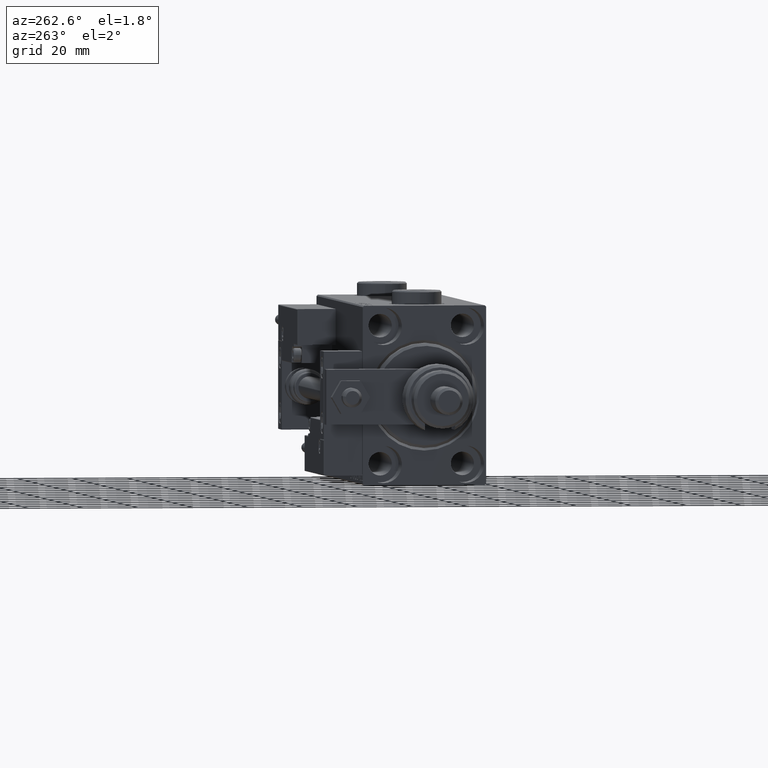
[diagram: clean part render]
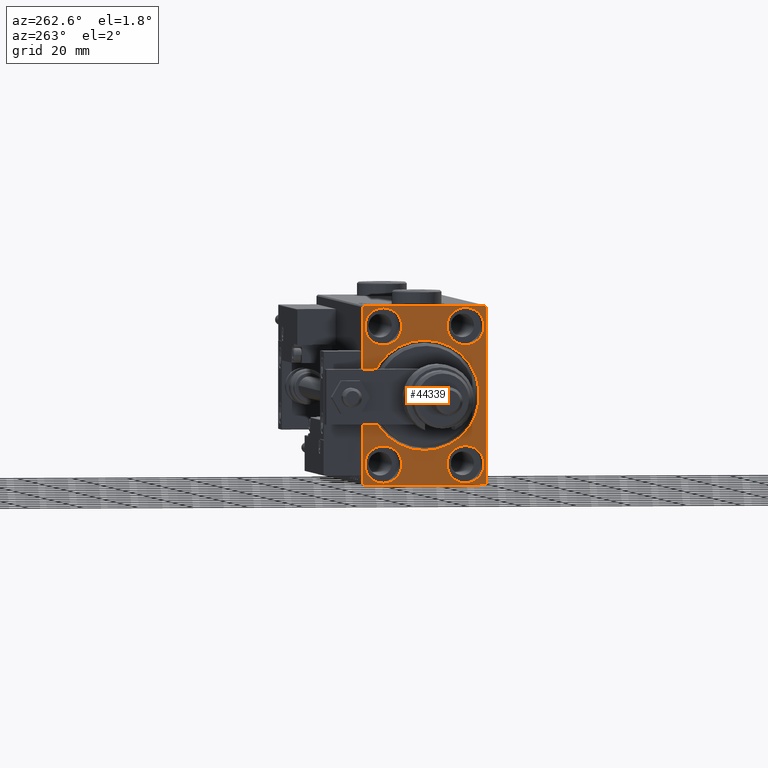
[diagram: same view with one face highlighted and labeled with its STEP entity id]
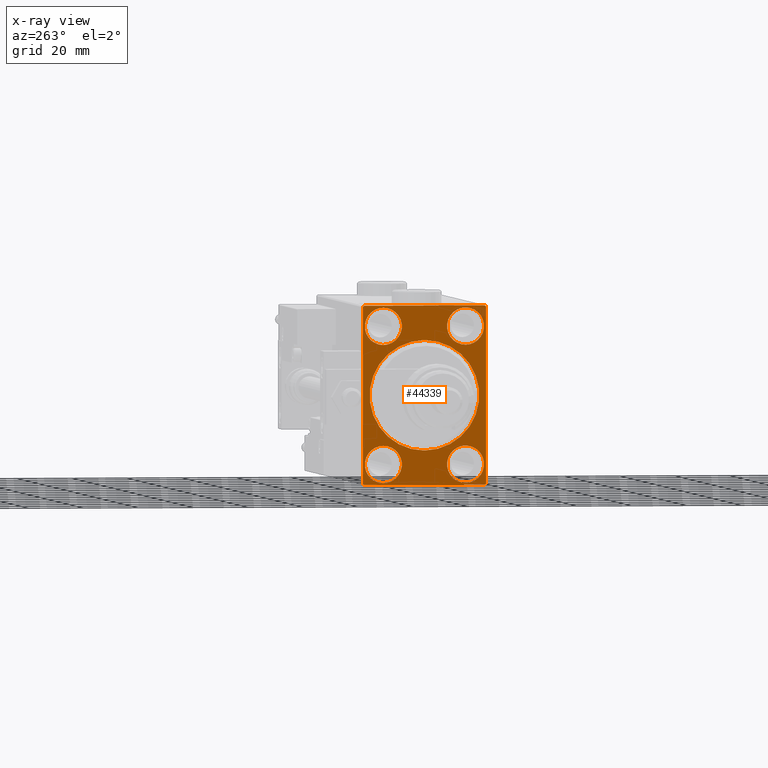
[diagram: x-ray of the same camera — body ghosted, the highlighted face saturated]
A machine part, auxiliary view. The second image highlights one B-rep face of the part: STEP entity #44339.
The next image is the same camera in x-ray: the body ghosted, the highlighted face saturated — about 0% of this face is hidden behind the body in this view.
In plain terms, the highlighted planar face has unit normal (1, 0, 0).
Its self-contained STEP definition (entity closure, byte-faithful):
#157 = ORIENTED_EDGE ( 'NONE', *, *, #30967, .F. ) ;
#197 = CARTESIAN_POINT ( 'NONE',  ( 0.000000000000000000, -22.50000000000000711, 31.99999999999999289 ) ) ;
#1012 = FACE_BOUND ( 'NONE', #31137, .T. ) ;
#1117 = ORIENTED_EDGE ( 'NONE', *, *, #22055, .F. ) ;
#1388 = VERTEX_POINT ( 'NONE', #45749 ) ;
#1399 = EDGE_CURVE ( 'NONE', #49392, #1388, #13057, .T. ) ;
#2092 = FACE_BOUND ( 'NONE', #42843, .T. ) ;
#2257 = ORIENTED_EDGE ( 'NONE', *, *, #32039, .T. ) ;
#2720 = CARTESIAN_POINT ( 'NONE',  ( 0.000000000000000000, -22.00000000000003197, -32.50000000000000711 ) ) ;
#2734 = CARTESIAN_POINT ( 'NONE',  ( 0.000000000000000000, 14.99999999999999645, -18.25000000000000355 ) ) ;
#2912 = ORIENTED_EDGE ( 'NONE', *, *, #26546, .F. ) ;
#3501 = VERTEX_POINT ( 'NONE', #9302 ) ;
#3998 = DIRECTION ( 'NONE',  ( 0.000000000000000000, 1.000000000000000000, 0.000000000000000000 ) ) ;
#4112 = CARTESIAN_POINT ( 'NONE',  ( 0.000000000000000000, 14.99999999999999645, -25.00000000000000000 ) ) ;
#5258 = LINE ( 'NONE', #26428, #28710 ) ;
#5323 = EDGE_LOOP ( 'NONE', ( #39892, #2257, #48218, #26035, #10172, #29565, #50951, #53430 ) ) ;
#5826 = CARTESIAN_POINT ( 'NONE',  ( 0.000000000000000000, -15.00000000000000355, -25.00000000000000000 ) ) ;
#6015 = CIRCLE ( 'NONE', #29738, 6.749999999999999112 ) ;
#6078 = LINE ( 'NONE', #18999, #50220 ) ;
#6351 = DIRECTION ( 'NONE',  ( 0.000000000000000000, -1.067522139062650425E-16, 1.000000000000000000 ) ) ;
#6387 = CIRCLE ( 'NONE', #49365, 6.749999999999999112 ) ;
#6614 = CARTESIAN_POINT ( 'NONE',  ( 0.000000000000000000, 22.50000000000000000, -32.00000000000002132 ) ) ;
#7098 = CIRCLE ( 'NONE', #14140, 6.749999999999999112 ) ;
#7206 = DIRECTION ( 'NONE',  ( -1.000000000000000000, 0.000000000000000000, 0.000000000000000000 ) ) ;
#7276 = EDGE_LOOP ( 'NONE', ( #37390, #157 ) ) ;
#7561 = AXIS2_PLACEMENT_3D ( 'NONE', #38524, #34433, #28466 ) ;
#8316 = LINE ( 'NONE', #12972, #24203 ) ;
#8325 = EDGE_CURVE ( 'NONE', #53133, #9653, #7098, .T. ) ;
#8513 = DIRECTION ( 'NONE',  ( -1.000000000000000000, 0.000000000000000000, 0.000000000000000000 ) ) ;
#8542 = DIRECTION ( 'NONE',  ( 0.000000000000000000, 0.000000000000000000, 1.000000000000000000 ) ) ;
#8670 = VECTOR ( 'NONE', #36022, 1000.000000000000000 ) ;
#9227 = VERTEX_POINT ( 'NONE', #9516 ) ;
#9302 = CARTESIAN_POINT ( 'NONE',  ( 0.000000000000000000, -22.50000000000000711, -32.00000000000002132 ) ) ;
#9516 = CARTESIAN_POINT ( 'NONE',  ( 0.000000000000000000, 14.99999999999999645, -31.75000000000000000 ) ) ;
#9653 = VERTEX_POINT ( 'NONE', #20193 ) ;
#10007 = CIRCLE ( 'NONE', #22288, 6.749999999999999112 ) ;
#10172 = ORIENTED_EDGE ( 'NONE', *, *, #38869, .F. ) ;
#10915 = DIRECTION ( 'NONE',  ( 0.000000000000000000, 0.000000000000000000, 1.000000000000000000 ) ) ;
#11276 = AXIS2_PLACEMENT_3D ( 'NONE', #22712, #26842, #18596 ) ;
#12019 = ORIENTED_EDGE ( 'NONE', *, *, #30341, .T. ) ;
#12363 = DIRECTION ( 'NONE',  ( 0.000000000000000000, 0.000000000000000000, 1.000000000000000000 ) ) ;
#12885 = EDGE_CURVE ( 'NONE', #24911, #19437, #16101, .T. ) ;
#12928 = CARTESIAN_POINT ( 'NONE',  ( 0.000000000000000000, -14.99999999999999645, 25.00000000000000000 ) ) ;
#12972 = CARTESIAN_POINT ( 'NONE',  ( 0.000000000000000000, -22.00000000000003197, -32.50000000000000711 ) ) ;
#13057 = LINE ( 'NONE', #25166, #47303 ) ;
#13394 = FACE_OUTER_BOUND ( 'NONE', #5323, .T. ) ;
#13544 = VERTEX_POINT ( 'NONE', #20755 ) ;
#13776 = VERTEX_POINT ( 'NONE', #18249 ) ;
#14140 = AXIS2_PLACEMENT_3D ( 'NONE', #12928, #17331, #8542 ) ;
#14469 = FACE_BOUND ( 'NONE', #7276, .T. ) ;
#14523 = DIRECTION ( 'NONE',  ( -0.000000000000000000, 0.7071067811865474617, 0.7071067811865474617 ) ) ;
#15279 = DIRECTION ( 'NONE',  ( 0.000000000000000000, 0.000000000000000000, -1.000000000000000000 ) ) ;
#15381 = VECTOR ( 'NONE', #15279, 1000.000000000000000 ) ;
#16088 = LINE ( 'NONE', #28723, #15381 ) ;
#16101 = CIRCLE ( 'NONE', #44171, 20.00000000000000355 ) ;
#16530 = ORIENTED_EDGE ( 'NONE', *, *, #17179, .F. ) ;
#16737 = DIRECTION ( 'NONE',  ( -1.000000000000000000, 0.000000000000000000, 0.000000000000000000 ) ) ;
#16910 = VERTEX_POINT ( 'NONE', #43301 ) ;
#17179 = EDGE_CURVE ( 'NONE', #35864, #9227, #10007, .T. ) ;
#17312 = EDGE_CURVE ( 'NONE', #9227, #35864, #48583, .T. ) ;
#17331 = DIRECTION ( 'NONE',  ( -1.000000000000000000, 0.000000000000000000, 0.000000000000000000 ) ) ;
#17799 = DIRECTION ( 'NONE',  ( -0.000000000000000000, 0.7071067811865622277, -0.7071067811865328068 ) ) ;
#17906 = AXIS2_PLACEMENT_3D ( 'NONE', #4112, #8513, #12363 ) ;
#18249 = CARTESIAN_POINT ( 'NONE',  ( 0.000000000000000000, 22.00000000000002132, 32.50000000000000000 ) ) ;
#18596 = DIRECTION ( 'NONE',  ( 0.000000000000000000, 0.000000000000000000, -1.000000000000000000 ) ) ;
#18665 = CARTESIAN_POINT ( 'NONE',  ( 0.000000000000000000, -14.99999999999999645, 31.75000000000000000 ) ) ;
#18958 = CARTESIAN_POINT ( 'NONE',  ( 0.000000000000000000, -21.99999999999999289, 32.49999999999999289 ) ) ;
#18999 = CARTESIAN_POINT ( 'NONE',  ( 0.000000000000000000, 22.50000000000000000, -32.50000000000000711 ) ) ;
#19437 = VERTEX_POINT ( 'NONE', #53625 ) ;
#19666 = CARTESIAN_POINT ( 'NONE',  ( 0.000000000000000000, 15.00000000000000355, 18.25000000000000355 ) ) ;
#19859 = DIRECTION ( 'NONE',  ( 1.000000000000000000, 0.000000000000000000, 0.000000000000000000 ) ) ;
#20193 = CARTESIAN_POINT ( 'NONE',  ( 0.000000000000000000, -14.99999999999999645, 18.25000000000000355 ) ) ;
#20493 = VERTEX_POINT ( 'NONE', #19666 ) ;
#20594 = EDGE_CURVE ( 'NONE', #47745, #3501, #16088, .T. ) ;
#20755 = CARTESIAN_POINT ( 'NONE',  ( 0.000000000000000000, -15.00000000000000355, -31.75000000000000000 ) ) ;
#21098 = EDGE_CURVE ( 'NONE', #49392, #3501, #8316, .T. ) ;
#21291 = VERTEX_POINT ( 'NONE', #6614 ) ;
#22055 = EDGE_CURVE ( 'NONE', #28616, #13544, #37378, .T. ) ;
#22288 = AXIS2_PLACEMENT_3D ( 'NONE', #52298, #7206, #35808 ) ;
#22605 = DIRECTION ( 'NONE',  ( -1.000000000000000000, 0.000000000000000000, 0.000000000000000000 ) ) ;
#22665 = CIRCLE ( 'NONE', #27920, 20.00000000000000355 ) ;
#22712 = CARTESIAN_POINT ( 'NONE',  ( 0.000000000000000000, 0.000000000000000000, 0.000000000000000000 ) ) ;
#23984 = CARTESIAN_POINT ( 'NONE',  ( 0.000000000000000000, 0.000000000000000000, 0.000000000000000000 ) ) ;
#24203 = VECTOR ( 'NONE', #38253, 1000.000000000000114 ) ;
#24708 = DIRECTION ( 'NONE',  ( -1.000000000000000000, 0.000000000000000000, 0.000000000000000000 ) ) ;
#24911 = VERTEX_POINT ( 'NONE', #41810 ) ;
#25166 = CARTESIAN_POINT ( 'NONE',  ( 0.000000000000000000, -22.50000000000000711, -32.50000000000000711 ) ) ;
#26035 = ORIENTED_EDGE ( 'NONE', *, *, #45337, .T. ) ;
#26428 = CARTESIAN_POINT ( 'NONE',  ( 0.000000000000000000, 22.50000000000000000, -32.00000000000002132 ) ) ;
#26546 = EDGE_CURVE ( 'NONE', #30330, #20493, #41919, .T. ) ;
#26842 = DIRECTION ( 'NONE',  ( 1.000000000000000000, 0.000000000000000000, 0.000000000000000000 ) ) ;
#27920 = AXIS2_PLACEMENT_3D ( 'NONE', #41663, #45496, #37539 ) ;
#28466 = DIRECTION ( 'NONE',  ( 0.000000000000000000, 0.000000000000000000, 1.000000000000000000 ) ) ;
#28542 = EDGE_CURVE ( 'NONE', #21291, #1388, #5258, .T. ) ;
#28616 = VERTEX_POINT ( 'NONE', #36817 ) ;
#28710 = VECTOR ( 'NONE', #43167, 1000.000000000000114 ) ;
#28723 = CARTESIAN_POINT ( 'NONE',  ( 0.000000000000000000, -22.50000000000000711, 32.49999999999999289 ) ) ;
#29565 = ORIENTED_EDGE ( 'NONE', *, *, #28542, .T. ) ;
#29738 = AXIS2_PLACEMENT_3D ( 'NONE', #32338, #53212, #10915 ) ;
#30330 = VERTEX_POINT ( 'NONE', #44962 ) ;
#30341 = EDGE_CURVE ( 'NONE', #19437, #24911, #22665, .T. ) ;
#30411 = ORIENTED_EDGE ( 'NONE', *, *, #17312, .F. ) ;
#30649 = EDGE_LOOP ( 'NONE', ( #16530, #30411 ) ) ;
#30967 = EDGE_CURVE ( 'NONE', #9653, #53133, #6015, .T. ) ;
#31137 = EDGE_LOOP ( 'NONE', ( #2912, #42684 ) ) ;
#32039 = EDGE_CURVE ( 'NONE', #47745, #41722, #32567, .T. ) ;
#32338 = CARTESIAN_POINT ( 'NONE',  ( 0.000000000000000000, -14.99999999999999645, 25.00000000000000000 ) ) ;
#32567 = LINE ( 'NONE', #33112, #53398 ) ;
#33112 = CARTESIAN_POINT ( 'NONE',  ( 0.000000000000000000, -22.50000000000000711, 31.99999999999999289 ) ) ;
#34433 = DIRECTION ( 'NONE',  ( -1.000000000000000000, 0.000000000000000000, 0.000000000000000000 ) ) ;
#34561 = FACE_BOUND ( 'NONE', #49069, .T. ) ;
#35095 = CARTESIAN_POINT ( 'NONE',  ( 0.000000000000000000, 22.00000000000002132, 32.50000000000000000 ) ) ;
#35808 = DIRECTION ( 'NONE',  ( 0.000000000000000000, 0.000000000000000000, 1.000000000000000000 ) ) ;
#35864 = VERTEX_POINT ( 'NONE', #2734 ) ;
#36022 = DIRECTION ( 'NONE',  ( 0.000000000000000000, -1.000000000000000000, -1.541976423090495387E-16 ) ) ;
#36610 = DIRECTION ( 'NONE',  ( 0.000000000000000000, 0.000000000000000000, -1.000000000000000000 ) ) ;
#36817 = CARTESIAN_POINT ( 'NONE',  ( 0.000000000000000000, -15.00000000000000355, -18.25000000000000355 ) ) ;
#37378 = CIRCLE ( 'NONE', #7561, 6.749999999999999112 ) ;
#37390 = ORIENTED_EDGE ( 'NONE', *, *, #8325, .F. ) ;
#37539 = DIRECTION ( 'NONE',  ( 0.000000000000000000, 0.000000000000000000, -1.000000000000000000 ) ) ;
#38158 = DIRECTION ( 'NONE',  ( 0.000000000000000000, 0.000000000000000000, 1.000000000000000000 ) ) ;
#38253 = DIRECTION ( 'NONE',  ( -0.000000000000000000, -0.7071067811865376918, 0.7071067811865573427 ) ) ;
#38524 = CARTESIAN_POINT ( 'NONE',  ( 0.000000000000000000, -15.00000000000000355, -25.00000000000000000 ) ) ;
#38869 = EDGE_CURVE ( 'NONE', #21291, #16910, #6078, .T. ) ;
#39340 = DIRECTION ( 'NONE',  ( 0.000000000000000000, 0.000000000000000000, 1.000000000000000000 ) ) ;
#39892 = ORIENTED_EDGE ( 'NONE', *, *, #20594, .F. ) ;
#41444 = EDGE_CURVE ( 'NONE', #13544, #28616, #6387, .T. ) ;
#41663 = CARTESIAN_POINT ( 'NONE',  ( 0.000000000000000000, 0.000000000000000000, 0.000000000000000000 ) ) ;
#41722 = VERTEX_POINT ( 'NONE', #18958 ) ;
#41727 = DIRECTION ( 'NONE',  ( 0.000000000000000000, 0.000000000000000000, 1.000000000000000000 ) ) ;
#41810 = CARTESIAN_POINT ( 'NONE',  ( 0.000000000000000000, 2.449293598294706907E-15, -20.00000000000000355 ) ) ;
#41898 = EDGE_CURVE ( 'NONE', #20493, #30330, #48029, .T. ) ;
#41919 = CIRCLE ( 'NONE', #45434, 6.749999999999999112 ) ;
#42684 = ORIENTED_EDGE ( 'NONE', *, *, #41898, .F. ) ;
#42843 = EDGE_LOOP ( 'NONE', ( #1117, #52136 ) ) ;
#43167 = DIRECTION ( 'NONE',  ( 0.000000000000000000, -0.7071067811865474617, -0.7071067811865474617 ) ) ;
#43301 = CARTESIAN_POINT ( 'NONE',  ( 0.000000000000000000, 22.49999999999999289, 32.00000000000004974 ) ) ;
#44171 = AXIS2_PLACEMENT_3D ( 'NONE', #23984, #19859, #36610 ) ;
#44339 = ADVANCED_FACE ( 'NONE', ( #34561, #52114, #14469, #1012, #2092, #13394 ), #46894, .F. ) ;
#44962 = CARTESIAN_POINT ( 'NONE',  ( 0.000000000000000000, 15.00000000000000355, 31.75000000000000000 ) ) ;
#45337 = EDGE_CURVE ( 'NONE', #13776, #16910, #48245, .T. ) ;
#45434 = AXIS2_PLACEMENT_3D ( 'NONE', #54379, #16737, #41727 ) ;
#45496 = DIRECTION ( 'NONE',  ( 1.000000000000000000, 0.000000000000000000, 0.000000000000000000 ) ) ;
#45749 = CARTESIAN_POINT ( 'NONE',  ( 0.000000000000000000, 22.00000000000000000, -32.50000000000000711 ) ) ;
#46432 = VECTOR ( 'NONE', #17799, 1000.000000000000000 ) ;
#46894 = PLANE ( 'NONE',  #11276 ) ;
#47301 = ORIENTED_EDGE ( 'NONE', *, *, #12885, .T. ) ;
#47303 = VECTOR ( 'NONE', #3998, 1000.000000000000000 ) ;
#47745 = VERTEX_POINT ( 'NONE', #197 ) ;
#48029 = CIRCLE ( 'NONE', #52435, 6.749999999999999112 ) ;
#48138 = EDGE_CURVE ( 'NONE', #13776, #41722, #52239, .T. ) ;
#48218 = ORIENTED_EDGE ( 'NONE', *, *, #48138, .F. ) ;
#48245 = LINE ( 'NONE', #35095, #46432 ) ;
#48583 = CIRCLE ( 'NONE', #17906, 6.749999999999999112 ) ;
#49069 = EDGE_LOOP ( 'NONE', ( #12019, #47301 ) ) ;
#49173 = CARTESIAN_POINT ( 'NONE',  ( 0.000000000000000000, 22.49999999999999289, 32.50000000000000000 ) ) ;
#49365 = AXIS2_PLACEMENT_3D ( 'NONE', #5826, #22605, #39340 ) ;
#49392 = VERTEX_POINT ( 'NONE', #2720 ) ;
#50220 = VECTOR ( 'NONE', #6351, 1000.000000000000000 ) ;
#50782 = CARTESIAN_POINT ( 'NONE',  ( 0.000000000000000000, 15.00000000000000355, 25.00000000000000000 ) ) ;
#50951 = ORIENTED_EDGE ( 'NONE', *, *, #1399, .F. ) ;
#52114 = FACE_BOUND ( 'NONE', #30649, .T. ) ;
#52136 = ORIENTED_EDGE ( 'NONE', *, *, #41444, .F. ) ;
#52239 = LINE ( 'NONE', #49173, #8670 ) ;
#52298 = CARTESIAN_POINT ( 'NONE',  ( 0.000000000000000000, 14.99999999999999645, -25.00000000000000000 ) ) ;
#52435 = AXIS2_PLACEMENT_3D ( 'NONE', #50782, #24708, #38158 ) ;
#53133 = VERTEX_POINT ( 'NONE', #18665 ) ;
#53212 = DIRECTION ( 'NONE',  ( -1.000000000000000000, 0.000000000000000000, 0.000000000000000000 ) ) ;
#53398 = VECTOR ( 'NONE', #14523, 1000.000000000000114 ) ;
#53430 = ORIENTED_EDGE ( 'NONE', *, *, #21098, .T. ) ;
#53625 = CARTESIAN_POINT ( 'NONE',  ( 0.000000000000000000, 0.000000000000000000, 20.00000000000000355 ) ) ;
#54379 = CARTESIAN_POINT ( 'NONE',  ( 0.000000000000000000, 15.00000000000000355, 25.00000000000000000 ) ) ;